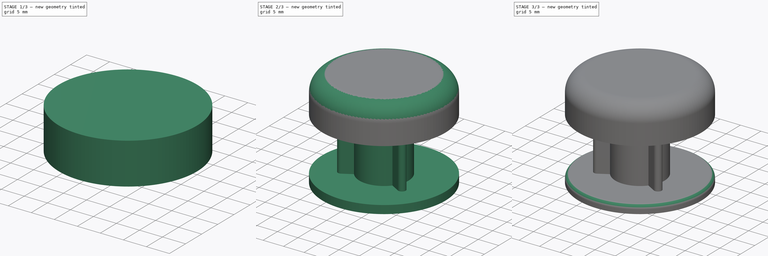
[diagram: build sequence overview — one tinted view per stage of 3, left to right]
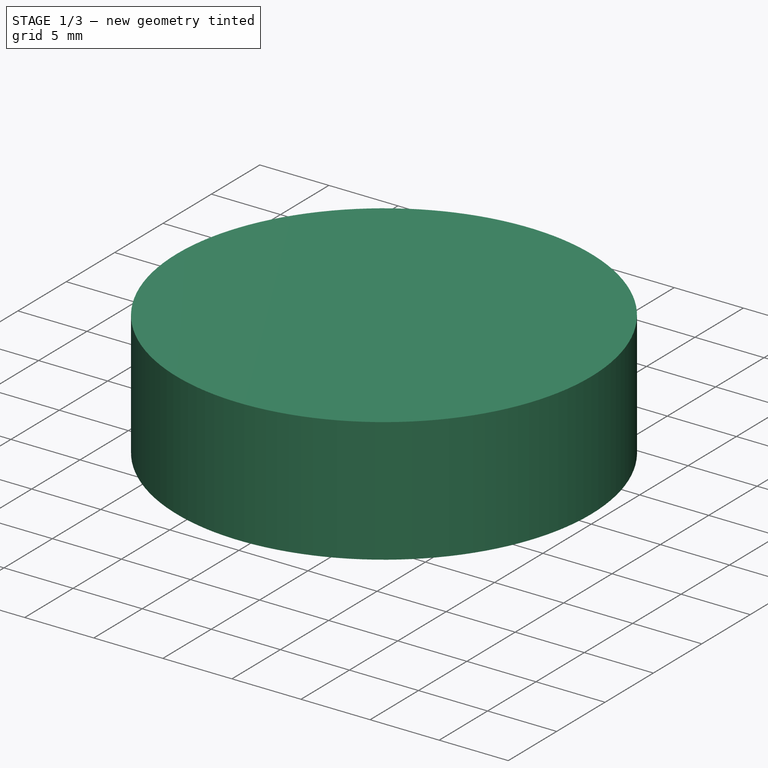
[diagram: stage 1 of 3 — iso view after this stage's code; geometry added in this stage tinted green]
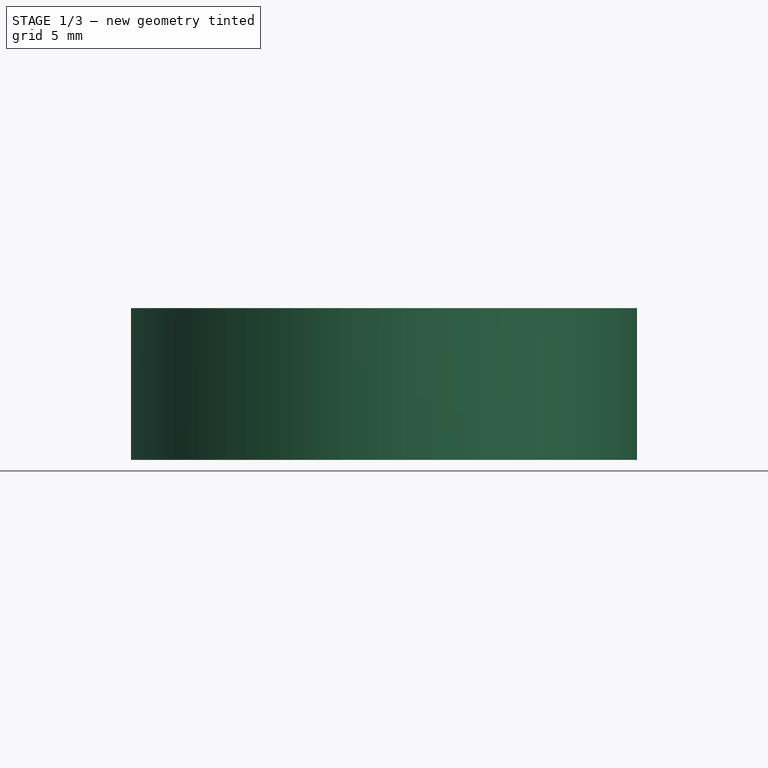
[diagram: stage 1 of 3 — front view after this stage's code; geometry added in this stage tinted green]
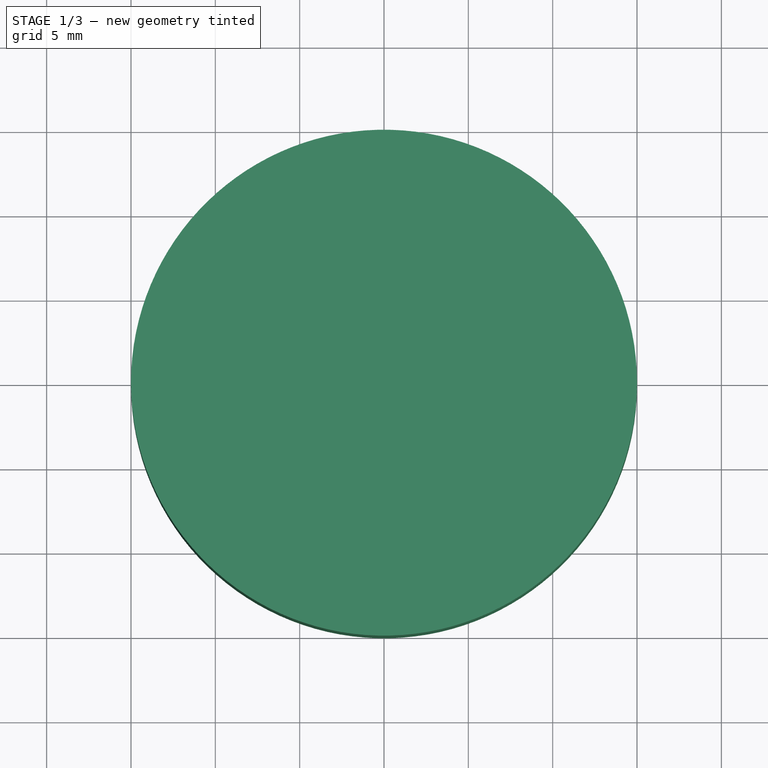
[diagram: stage 1 of 3 — top view after this stage's code; geometry added in this stage tinted green]
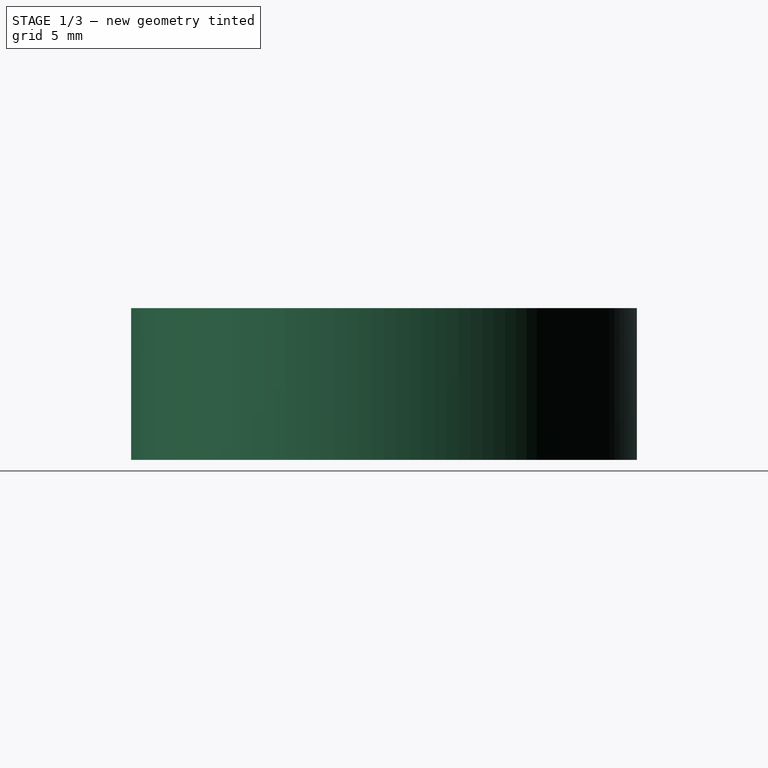
[diagram: stage 1 of 3 — right view after this stage's code; geometry added in this stage tinted green]
FCSTD DOCUMENT  (FreeCAD 1.0R39109 (Git))
Label: Super8Adapter
License: All rights reserved
LicenseURL: https://en.wikipedia.org/wiki/All_rights_reserved
objects: PartDesign::Pad×5, Sketcher::SketchObject×2, PartDesign::Fillet×2, PartDesign::Body×2, PartDesign::ShapeBinder×1, PartDesign::Plane×1
note: 29 computed .brp shape members not serialized (recipe doc carries the construction recipe); baked Part::Feature solids carry a one-line shape summary decoded from their .brp

FEATURE [PartDesign::Body] Body  label="StepperReelAdapter"
  AllowCompound = false
  Group = -> [Sketch,Pad,Pad001,Fillet,Pad002]
  Origin = -> Origin
  Tip = -> Pad002
FEATURE [PartDesign::ShapeBinder] CopyPad002
  Placement = pos=(0,0,17) rot=(0,0,1;0rad)
  TraceSupport = false
FEATURE [PartDesign::Plane] DatumPlane
  AttachmentOffset = pos=(0,0,3) rot=(0,0,1;0rad)
  AttachmentSupport = -> [CopyPad002]
  Length = 60
  MapMode = 5
  Placement = pos=(0,0,20) rot=(0,0,1;0rad)
  ResizeMode = 0
  Width = 60
FEATURE [Sketcher::SketchObject] Sketch001
  ArcFitTolerance = 1e-06
  AttachmentSupport = -> [DatumPlane]
  FullyConstrained = true
  MakeInternals = false
  MapMode = 5
  Placement = pos=(0,0,20) rot=(0,0,1;0rad)
  sketch-geometry (2):
    g0: Circle CenterX=0 CenterY=0 CenterZ=0 NormalX=0 NormalY=0 NormalZ=1 AngleXU=0 Radius=6.1
    g1: Circle CenterX=0 CenterY=0 CenterZ=0 NormalX=0 NormalY=0 NormalZ=1 AngleXU=0 Radius=15
  constraints (4):
    c: Diameter(g0) = 12.2
    c: Coincident(g0,g-1)
    c: Diameter(g1) = 30
    c: Coincident(g1,g0)
FEATURE [PartDesign::Pad] Pad003
  Direction = (0,0,1)
  Length = 7
  Length2 = 10
  Placement = pos=(0,0,20) rot=(0,0,1;0rad)
  Profile = -> Sketch001 [Edge2,Edge1]
  ReferenceAxis = -> Sketch001 [N_Axis]
  Refine = true
  Reversed = true
  Suppressed = false
  Type = 0
FEATURE [PartDesign::Pad] Pad004
  BaseFeature = -> Pad003
  Direction = (0,0,1)
  Length = 2
  Length2 = 10
  Placement = pos=(0,0,20) rot=(0,0,1;0rad)
  Profile = -> Sketch001 [Edge2]
  ReferenceAxis = -> Sketch001 [N_Axis]
  Refine = true
  Suppressed = false
  Type = 0
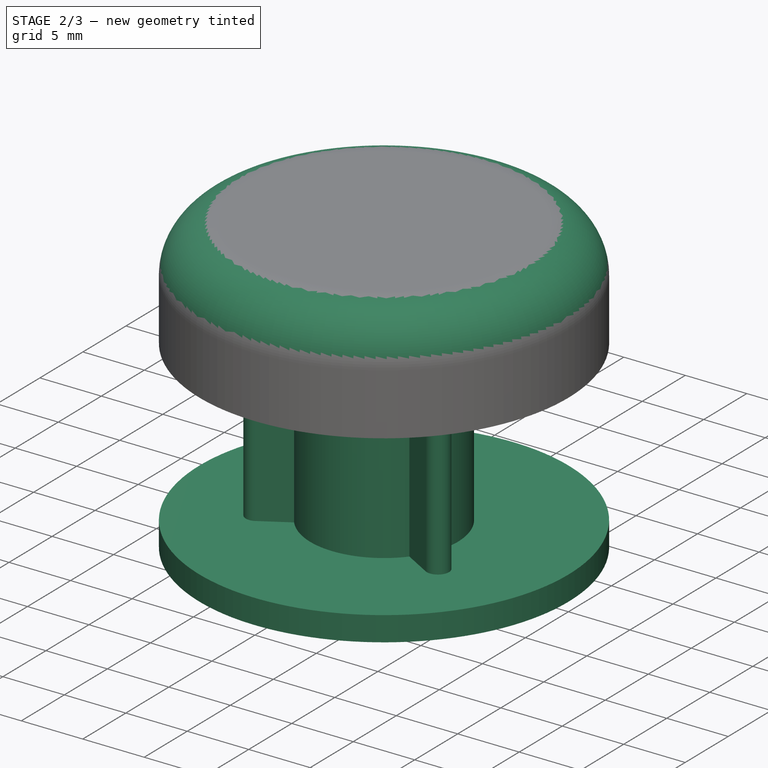
[diagram: stage 2 of 3 — iso view after this stage's code; geometry added in this stage tinted green]
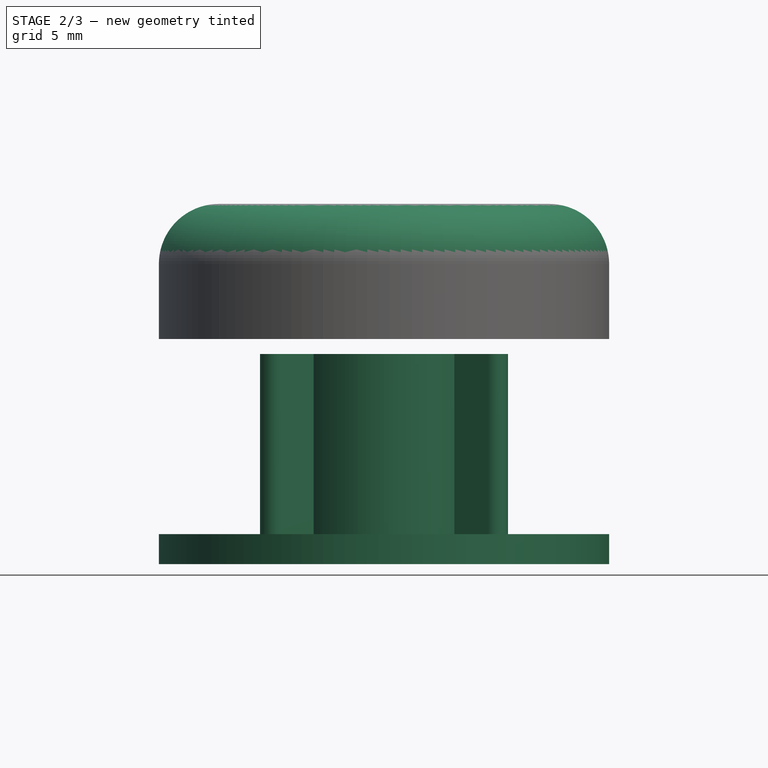
[diagram: stage 2 of 3 — front view after this stage's code; geometry added in this stage tinted green]
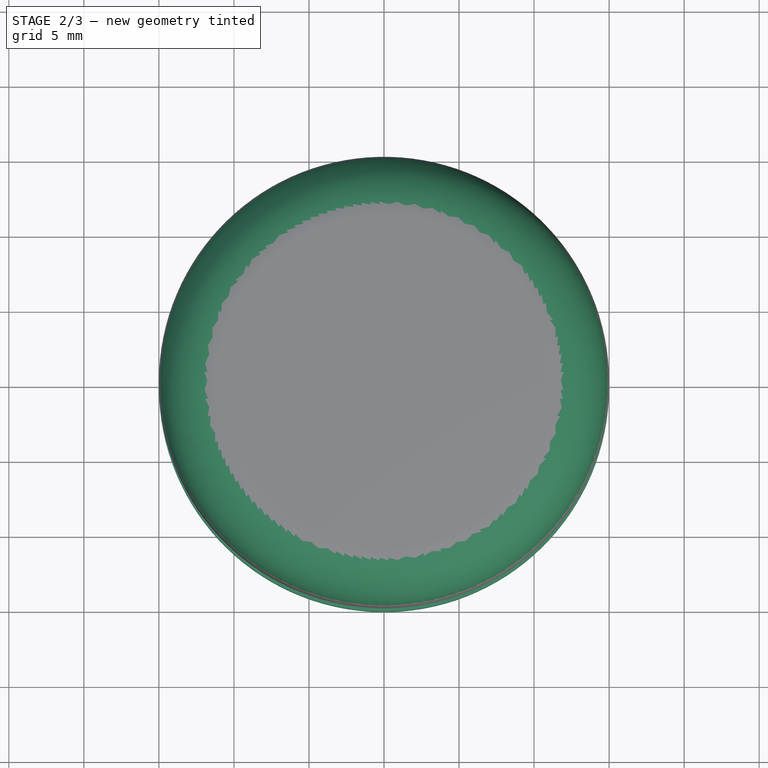
[diagram: stage 2 of 3 — top view after this stage's code; geometry added in this stage tinted green]
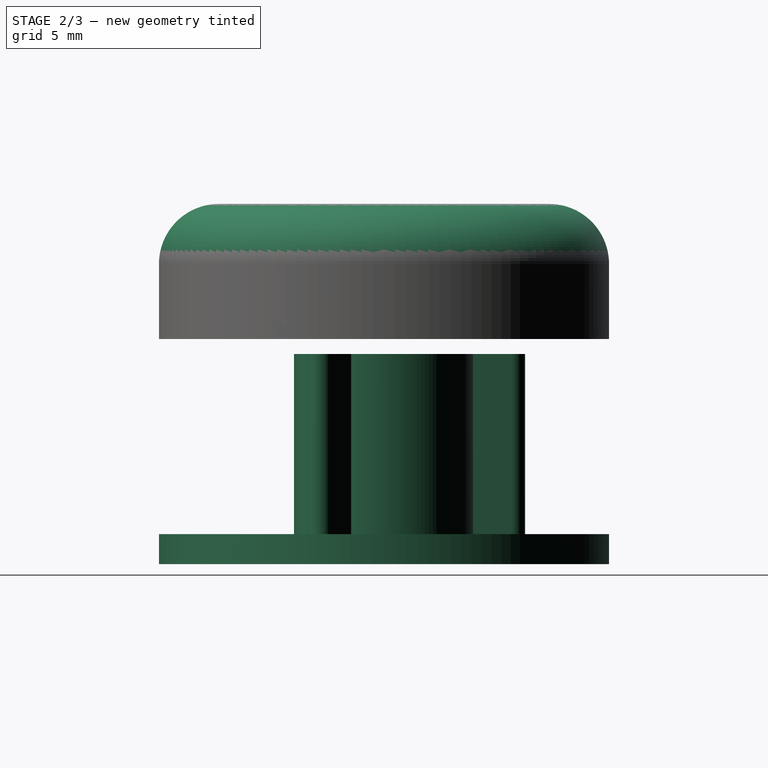
[diagram: stage 2 of 3 — right view after this stage's code; geometry added in this stage tinted green]
FEATURE [Sketcher::SketchObject] Sketch
  ArcFitTolerance = 1e-06
  AttachmentSupport = -> [XY_Plane]
  FullyConstrained = false
  MakeInternals = false
  MapMode = 5
  sketch-geometry (17):
    g0: Circle CenterX=-2.3e-15 CenterY=-2.4e-15 CenterZ=0 NormalX=0 NormalY=0 NormalZ=1 AngleXU=0 Radius=15
    g1: LineSegment StartX=-1.41421 StartY=2.3 StartZ=0 EndX=1.41421 EndY=2.3 EndZ=0
    g2: ArcOfCircle CenterX=0 CenterY=1.55885e-07 CenterZ=0 NormalX=0 NormalY=0 NormalZ=1 AngleXU=0 Radius=2.7 StartAngle=2.12208 EndAngle=7.3027
    g3: LineSegment [constr] StartX=0 StartY=1.55885e-07 StartZ=0 EndX=0 EndY=8.5 EndZ=0
    g4: ArcOfCircle CenterX=-2.3e-15 CenterY=-2.4e-15 CenterZ=0 NormalX=0 NormalY=0 NormalZ=1 AngleXU=0 Radius=6 StartAngle=1.72136 EndAngle=3.51462
    g5: ArcOfCircle CenterX=0 CenterY=8.5 CenterZ=0 NormalX=0 NormalY=0 NormalZ=1 AngleXU=0 Radius=0.9 StartAngle=6.28319 EndAngle=9.42478
    g6: LineSegment StartX=-0.9 StartY=8.5 StartZ=0 EndX=-0.9 EndY=5.93212 EndZ=0
    g7: LineSegment StartX=0.9 StartY=8.5 StartZ=0 EndX=0.9 EndY=5.93212 EndZ=0
    g8: LineSegment StartX=6.91122 StartY=-5.02942 StartZ=0 EndX=4.68736 EndY=-3.74548 EndZ=0
    g9: LineSegment StartX=7.81122 StartY=-3.47058 StartZ=0 EndX=5.58736 EndY=-2.18664 EndZ=0
    g10: ArcOfCircle CenterX=7.36122 CenterY=-4.25 CenterZ=0 NormalX=0 NormalY=0 NormalZ=1 AngleXU=0 Radius=0.9 StartAngle=4.18879 EndAngle=7.33038
    g11: LineSegment StartX=-7.81122 StartY=-3.47058 StartZ=0 EndX=-5.58736 EndY=-2.18664 EndZ=0
    g12: LineSegment StartX=-6.91122 StartY=-5.02942 StartZ=0 EndX=-4.68736 EndY=-3.74548 EndZ=0
    g13: ArcOfCircle CenterX=-7.36122 CenterY=-4.25 CenterZ=0 NormalX=0 NormalY=0 NormalZ=1 AngleXU=0 Radius=0.9 StartAngle=2.0944 EndAngle=5.23599
    g14: ArcOfCircle CenterX=-2.3e-15 CenterY=-2.4e-15 CenterZ=0 NormalX=0 NormalY=0 NormalZ=1 AngleXU=0 Radius=6 StartAngle=5.91015 EndAngle=7.70341
    g15: ArcOfCircle CenterX=-2.3e-15 CenterY=-2.4e-15 CenterZ=0 NormalX=0 NormalY=0 NormalZ=1 AngleXU=0 Radius=6 StartAngle=3.81576 EndAngle=5.60902
    g16: Circle CenterX=-2.3e-15 CenterY=-2.4e-15 CenterZ=0 NormalX=0 NormalY=0 NormalZ=1 AngleXU=0 Radius=6
  constraints (38):
    c: Diameter(g0) = 30
    c: Horizontal(g1)
    c: Distance(g-1,g1) = 2.3
    c: Diameter(g2) = 5.4
    c: Coincident(g2,g1)
    c: Coincident(g2,g1)
    c: Distance(g3) = 8.5
    c: Coincident(g3,g2)
    c: PointOnObject(g3,g-2)
    c: Vertical(g3)
    c: Diameter(g4) = 12
    c: Coincident(g4,g0)
    c: Radius(g5) = 0.9
    c: Angle(g5) = 3.14159
    c: Coincident(g5,g3)
    c: Vertical(g6)
    c: Coincident(g6,g5)
    c: Vertical(g7)
    c: Coincident(g7,g5)
    c: Radius(g10) = 0.9
    c: Radius(g13) = 0.9
    c: Coincident(g9,g10)
    c: Coincident(g12,g13)
    c: Coincident(g8,g10)
    c: Coincident(g11,g13)
    c: Coincident(g4,g6)
    c: Coincident(g14,g7)
    c: PointOnObject(g9,g14)
    c: Equal(g4,g14)
    c: Coincident(g15,g8)
    c: PointOnObject(g14,g9)
    c: Coincident(g4,g14)
    c: PointOnObject(g12,g15)
    c: Equal(g4,g15)
    c: PointOnObject(g15,g12)
    c: Coincident(g4,g15)
    c: Coincident(g11,g4)
    c: Coincident(g16,g0)
FEATURE [PartDesign::Pad] Pad
  Direction = (0,0,1)
  Length = 12
  Length2 = 10
  Profile = -> Sketch [Edge14,Edge13,Edge12,Edge11,Edge10,Edge9,Edge8,Edge7,Edge6,Edge5,Edge4,Edge15,Edge2,Edge3]
  ReferenceAxis = -> Sketch [N_Axis]
  Refine = true
  Suppressed = false
  Type = 0
FEATURE [PartDesign::Pad] Pad001
  BaseFeature = -> Pad
  Direction = (0,0,1)
  Length = 2
  Length2 = 10
  Profile = -> Sketch [Edge1,Edge3,Edge2]
  ReferenceAxis = -> Sketch [N_Axis]
  Refine = true
  Reversed = true
  Suppressed = false
  Type = 0
FEATURE [PartDesign::Fillet] Fillet001
  Base = -> Pad004 [Edge1]
  BaseFeature = -> Pad004
  Placement = pos=(0,0,20) rot=(0,0,1;0rad)
  Radius = 4
  Refine = true
  SupportTransform = false
  Suppressed = false
  UseAllEdges = false
FEATURE [PartDesign::Body] Body001  label="StepperReelAdapterCap"
  AllowCompound = false
  Group = -> [DatumPlane,CopyPad002,Sketch001,Pad003,Pad004,Fillet001]
  Origin = -> Origin001
  Placement = pos=(0,0,17) rot=(0,0,1;0rad)
  Tip = -> Fillet001
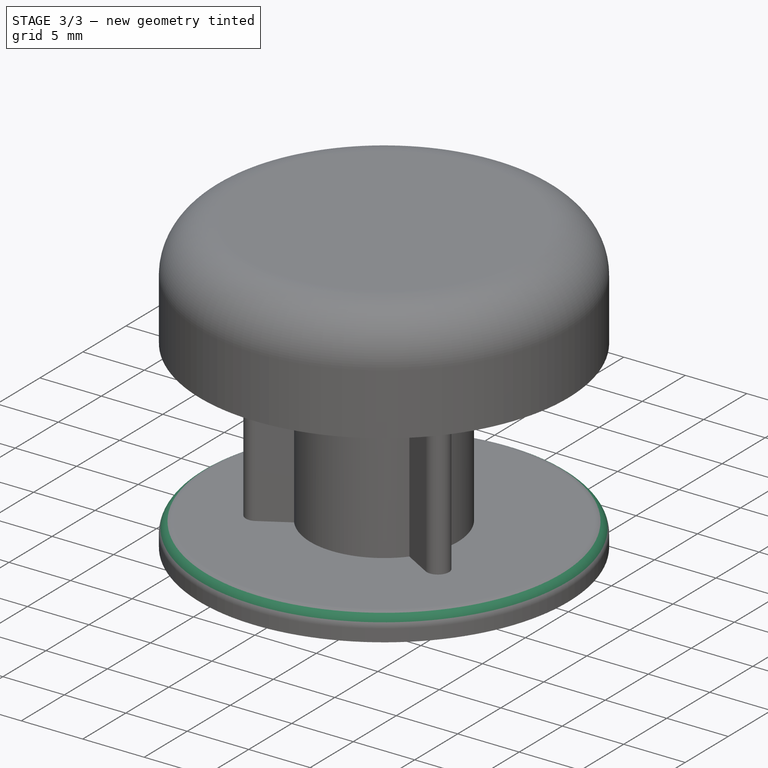
[diagram: stage 3 of 3 — iso view after this stage's code; geometry added in this stage tinted green]
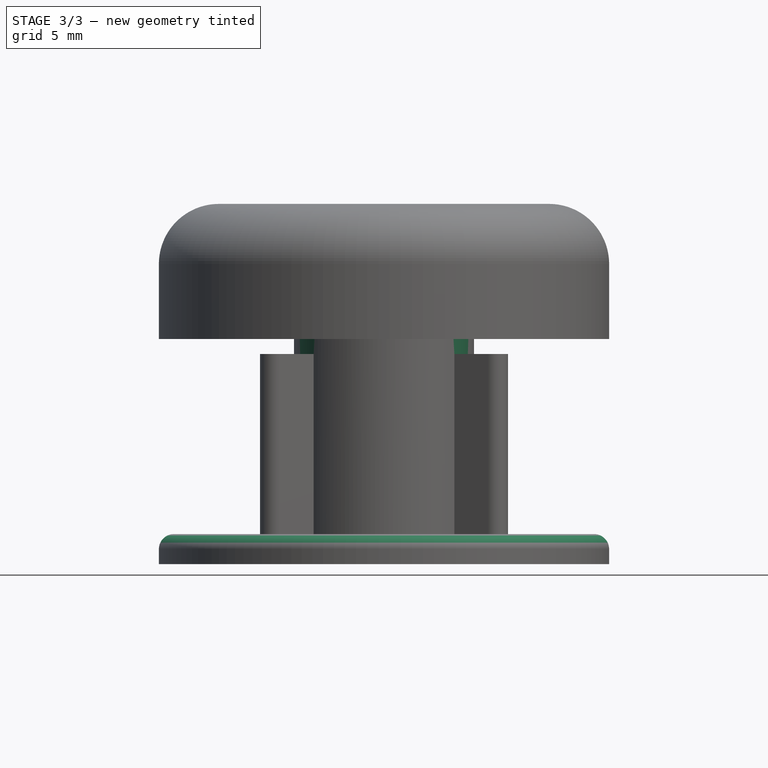
[diagram: stage 3 of 3 — front view after this stage's code; geometry added in this stage tinted green]
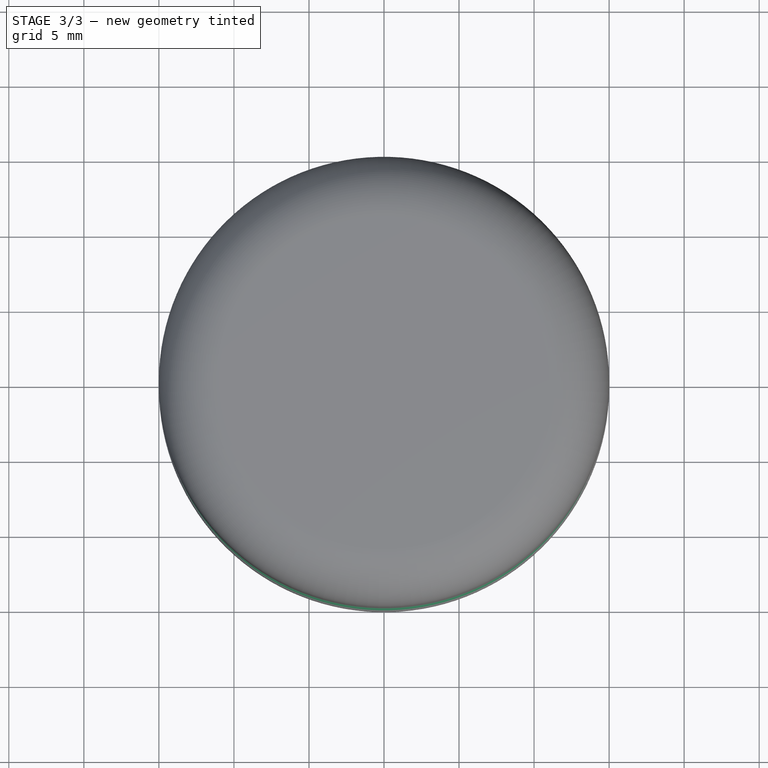
[diagram: stage 3 of 3 — top view after this stage's code; geometry added in this stage tinted green]
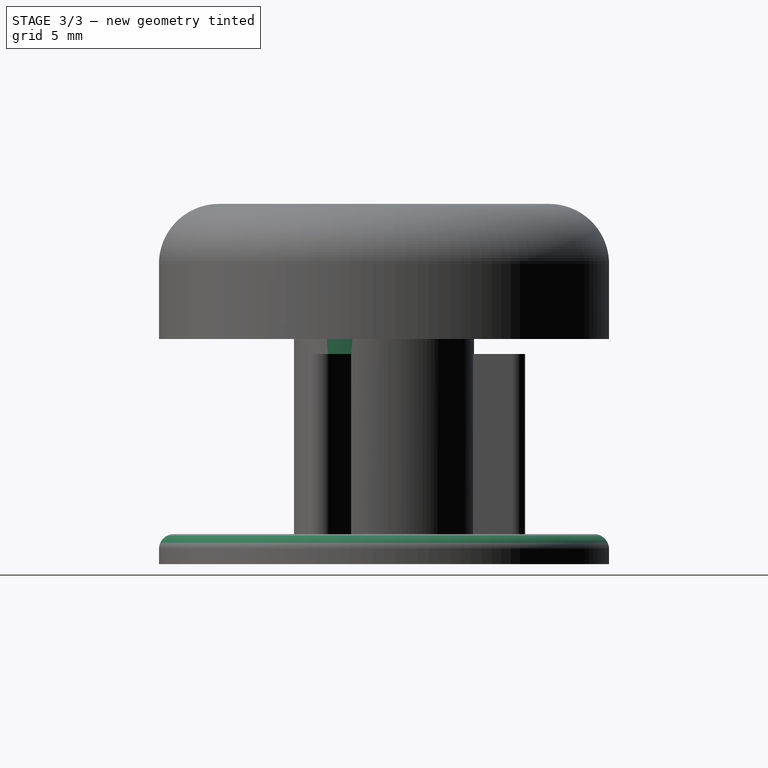
[diagram: stage 3 of 3 — right view after this stage's code; geometry added in this stage tinted green]
FEATURE [PartDesign::Fillet] Fillet
  Base = -> Pad001 [Edge11]
  BaseFeature = -> Pad001
  Radius = 1
  Refine = true
  SupportTransform = false
  Suppressed = false
  UseAllEdges = false
FEATURE [PartDesign::Pad] Pad002
  BaseFeature = -> Fillet
  Direction = (0,0,1)
  Length = 17
  Length2 = 10
  Profile = -> Sketch [Edge16,Edge3,Edge2]
  ReferenceAxis = -> Sketch [N_Axis]
  Refine = true
  Suppressed = false
  Type = 0
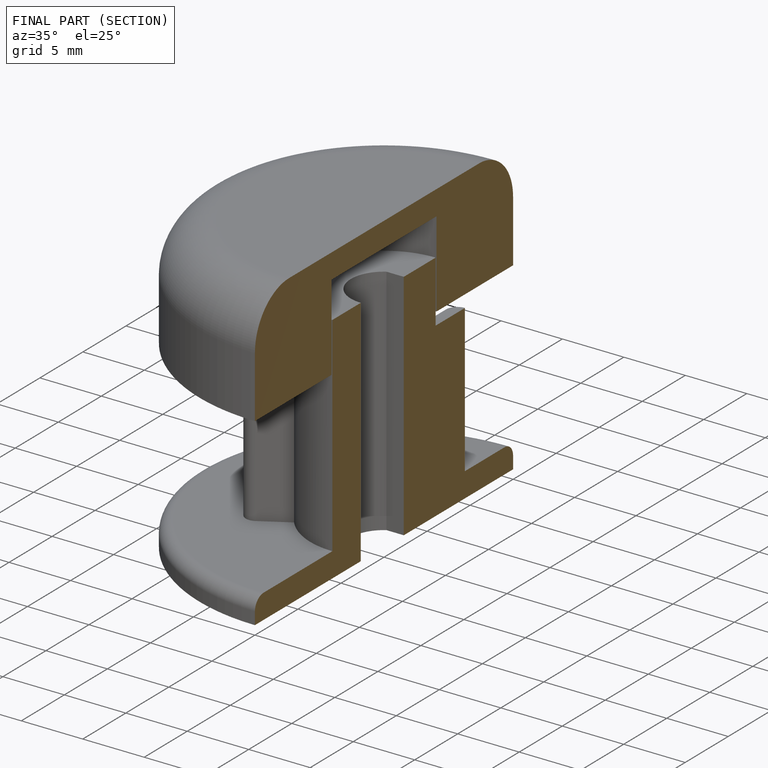
[diagram: finished part — half-section view (interior)]
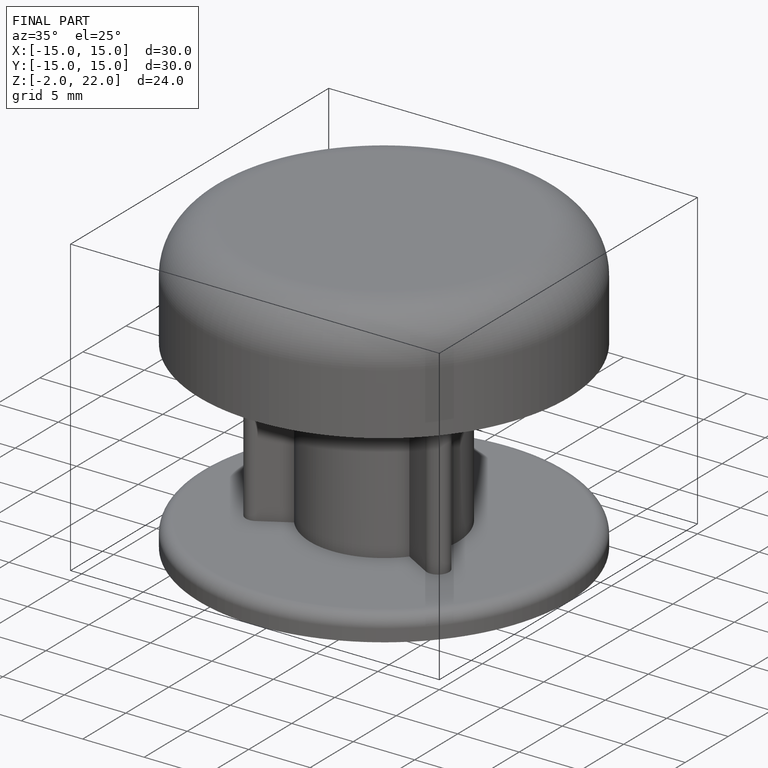
[diagram: finished part — iso view with bounding-box wireframe]
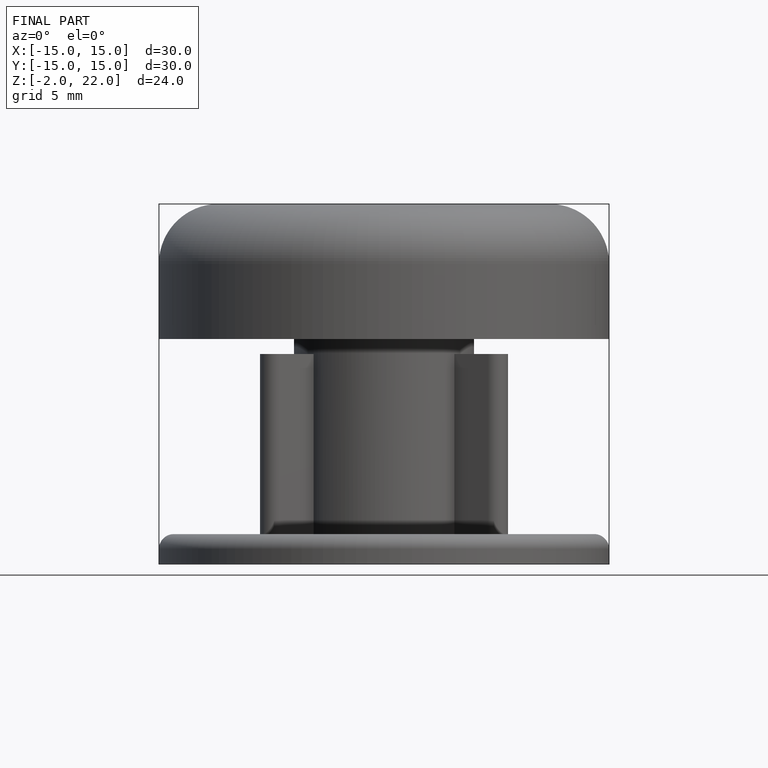
[diagram: finished part — front view with bounding-box wireframe]
